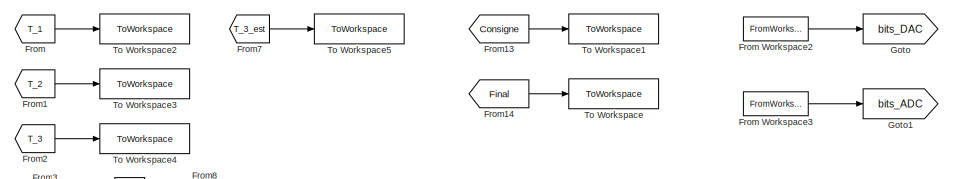
[diagram: root canvas - part 1/3, top left region]
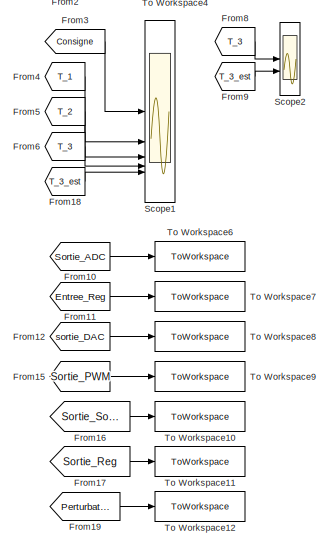
[diagram: root canvas - part 2/3, left side, full height]
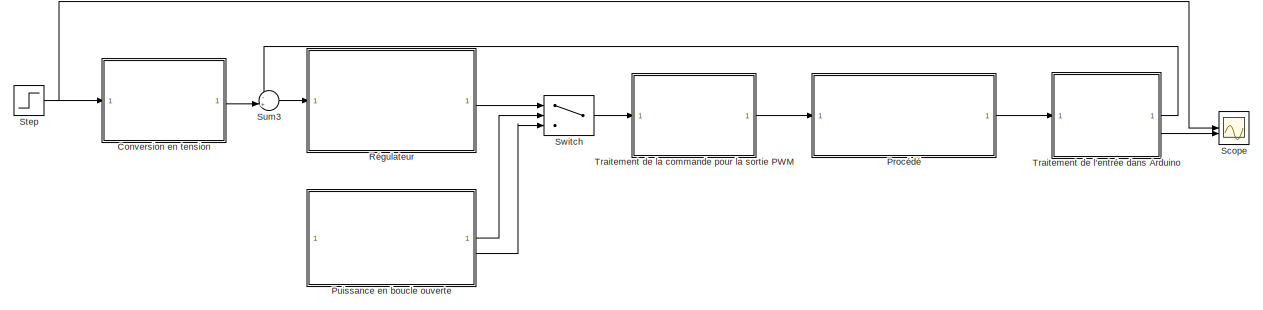
[diagram: root canvas - part 3/3, full width, middle band]
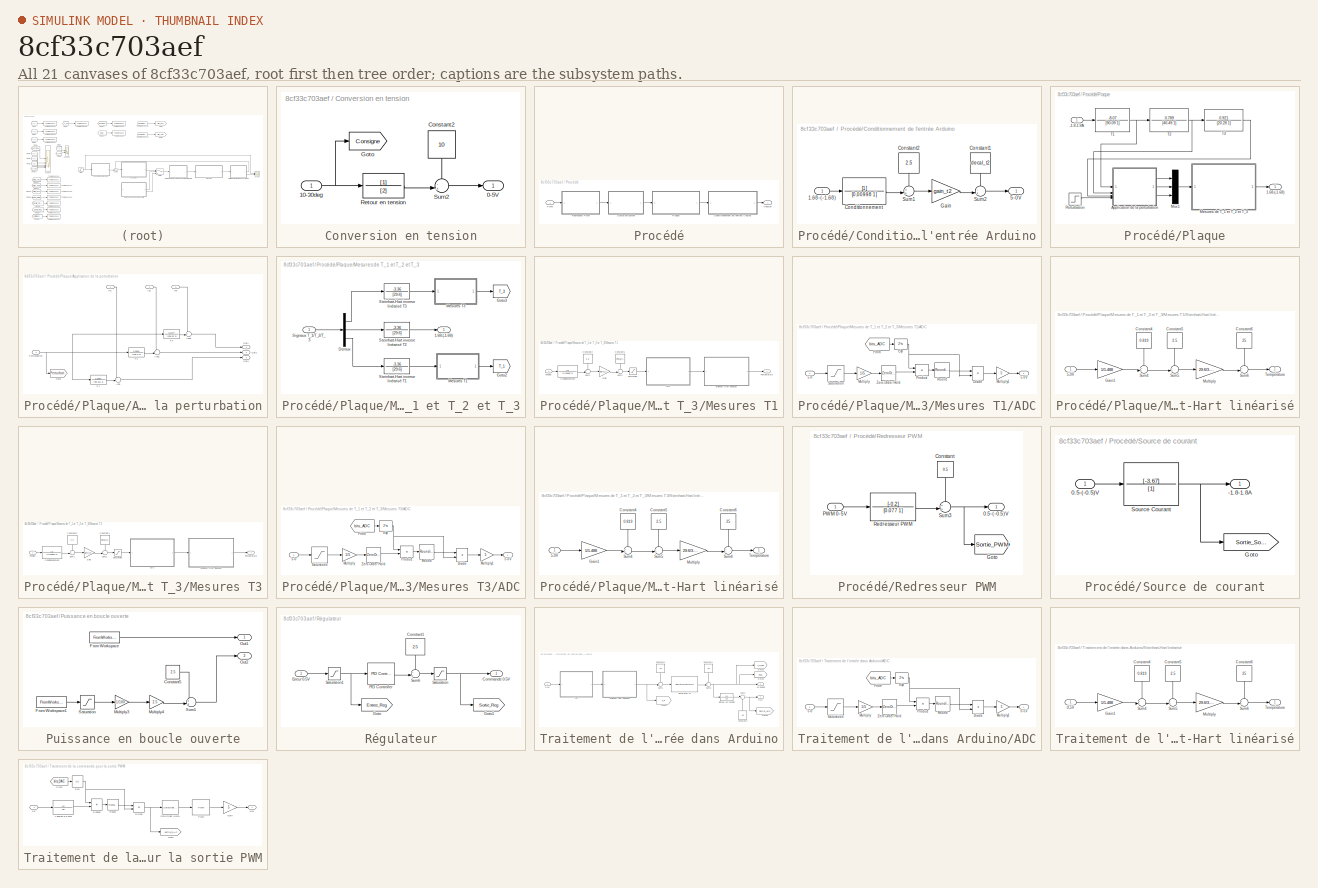
[diagram: thumbnail index - all 21 canvases of the model, root first then tree order]
MODEL slx_8cf33c703aef
KIND model
CONFIG AbsTol = auto
CONFIG EnableMultiTasking = off
CONFIG FixedStep = auto
CONFIG MaxStep = auto
CONFIG MinStep = auto
CONFIG RelTol = 1e-3
CONFIG SampleTimeConstraint = Unconstrained
CONFIG SolverName = VariableStepAuto
CONFIG StartTime = 0.0
CONFIG StopTime = 2000
WORKSPACE source: mxarray member
WORKSPACE Max_DAC = 1
BLOCK [SubSystem] Conversion en tension
BLOCK [Outport] Conversion en tension/0-5V
BLOCK [Inport] Conversion en tension/10-30deg
BLOCK [Constant] Conversion en tension/Constant2
  NameLocation = left
  Value = 10
BLOCK [Goto] Conversion en tension/Goto
  GotoTag = Consigne
  TagVisibility = global
BLOCK [TransferFcn] Conversion en tension/Retour en tension
  Denominator = [2]
BLOCK [Sum] Conversion en tension/Sum2
  InputSameDT = on
  Inputs = -+|
  OutDataTypeStr = Inherit: Same as first input
  SaturateOnIntegerOverflow = on
BLOCK [From] From
  GotoTag = T_1
  TagVisibility = global
BLOCK [FromWorkspace] From Workspace2
  VariableName = bits_DAC
BLOCK [FromWorkspace] From Workspace3
  VariableName = bits_ADC
BLOCK [From] From1
  GotoTag = T_2
  TagVisibility = global
BLOCK [From] From10
  GotoTag = Sortie_ADC
  TagVisibility = global
BLOCK [From] From11
  GotoTag = Entree_Reg
  TagVisibility = global
BLOCK [From] From12
  GotoTag = sortie_DAC
  TagVisibility = global
BLOCK [From] From13
  GotoTag = Consigne
  TagVisibility = global
BLOCK [From] From14
  GotoTag = Final
  TagVisibility = global
BLOCK [From] From15
  GotoTag = Sortie_PWM
  TagVisibility = global
BLOCK [From] From16
  GotoTag = Sortie_Source
  TagVisibility = global
BLOCK [From] From17
  GotoTag = Sortie_Reg
  TagVisibility = global
BLOCK [From] From18
  GotoTag = T_3_est
  TagVisibility = global
BLOCK [From] From19
  GotoTag = Perturbation
  TagVisibility = global
BLOCK [From] From2
  GotoTag = T_3
  TagVisibility = global
BLOCK [From] From3
  GotoTag = Consigne
  TagVisibility = global
BLOCK [From] From4
  GotoTag = T_1
  TagVisibility = global
BLOCK [From] From5
  GotoTag = T_2
  TagVisibility = global
BLOCK [From] From6
  GotoTag = T_3
  TagVisibility = global
BLOCK [From] From7
  GotoTag = T_3_est
  TagVisibility = global
BLOCK [From] From8
  GotoTag = T_3
  TagVisibility = global
BLOCK [From] From9
  GotoTag = T_3_est
  TagVisibility = global
BLOCK [Goto] Goto
  GotoTag = bits_DAC
  TagVisibility = global
BLOCK [Goto] Goto1
  GotoTag = bits_ADC
  TagVisibility = global
BLOCK [SubSystem] Procédé
BLOCK [SubSystem] Procédé/Conditionnement de l'entrée Arduino
BLOCK [Inport] Procédé/Conditionnement de l'entrée Arduino/1.68-(-1.68)
  PortDimensions = 1
BLOCK [Outport] Procédé/Conditionnement de l'entrée Arduino/5-0V
  PortDimensions = 1
BLOCK [TransferFcn] Procédé/Conditionnement de l'entrée Arduino/Conditionnement
  Denominator = [0.00998 1]
BLOCK [Constant] Procédé/Conditionnement de l'entrée Arduino/Constant1
  NameLocation = left
  Value = decal_t2
BLOCK [Constant] Procédé/Conditionnement de l'entrée Arduino/Constant2
  NameLocation = left
  Value = 2.5
BLOCK [Gain] Procédé/Conditionnement de l'entrée Arduino/Gain
  Gain = gain_t2
BLOCK [Sum] Procédé/Conditionnement de l'entrée Arduino/Sum1
  InputSameDT = on
  Inputs = ++|
  OutDataTypeStr = Inherit: Same as first input
  SaturateOnIntegerOverflow = on
BLOCK [Sum] Procédé/Conditionnement de l'entrée Arduino/Sum2
  InputSameDT = on
  Inputs = -+|
  OutDataTypeStr = Inherit: Same as first input
  SaturateOnIntegerOverflow = on
BLOCK [Inport] Procédé/PWM
BLOCK [SubSystem] Procédé/Plaque
  ShowPortLabels = SignalName
BLOCK [Inport] Procédé/Plaque/-1.8-1.8A
  PortDimensions = 1
BLOCK [Outport] Procédé/Plaque/1.68-(-1.68)
  PortDimensions = 1
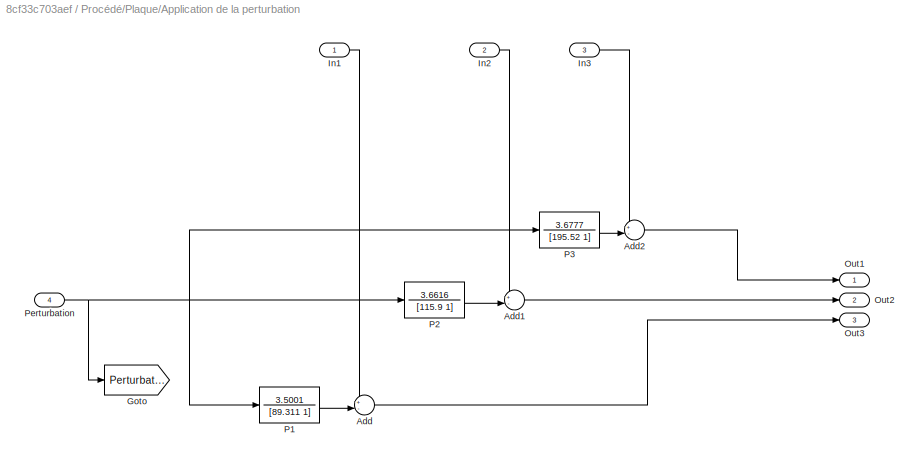
BLOCK [SubSystem] Procédé/Plaque/Application de la perturbation
BLOCK [Sum] Procédé/Plaque/Application de la perturbation/Add
  Inputs = +-|
BLOCK [Sum] Procédé/Plaque/Application de la perturbation/Add1
  Inputs = +-|
BLOCK [Sum] Procédé/Plaque/Application de la perturbation/Add2
  Inputs = +-|
BLOCK [Goto] Procédé/Plaque/Application de la perturbation/Goto
  GotoTag = Perturbation
  TagVisibility = global
BLOCK [Inport] Procédé/Plaque/Application de la perturbation/In1
BLOCK [Inport] Procédé/Plaque/Application de la perturbation/In2
  Port = 2
BLOCK [Inport] Procédé/Plaque/Application de la perturbation/In3
  Port = 3
BLOCK [Outport] Procédé/Plaque/Application de la perturbation/Out1
BLOCK [Outport] Procédé/Plaque/Application de la perturbation/Out2
  Port = 2
BLOCK [Outport] Procédé/Plaque/Application de la perturbation/Out3
  Port = 3
BLOCK [TransferFcn] Procédé/Plaque/Application de la perturbation/P1
  Denominator = [89.311 1]
  Numerator = 3.5001
BLOCK [TransferFcn] Procédé/Plaque/Application de la perturbation/P2
  Denominator = [115.9 1]
  Numerator = 3.6616
BLOCK [TransferFcn] Procédé/Plaque/Application de la perturbation/P3
  Denominator = [195.52 1]
  Numerator = 3.6777
BLOCK [Inport] Procédé/Plaque/Application de la perturbation/Perturbation
  Port = 4
BLOCK [SubSystem] Procédé/Plaque/Mesures de T_1 et T_2 et T_3
BLOCK [Outport] Procédé/Plaque/Mesures de T_1 et T_2 et T_3/1.68-(-1.68)
BLOCK [Demux] Procédé/Plaque/Mesures de T_1 et T_2 et T_3/Demux
  Outputs = 3
BLOCK [Goto] Procédé/Plaque/Mesures de T_1 et T_2 et T_3/Goto2
  GotoTag = T_1
  TagVisibility = global
BLOCK [Goto] Procédé/Plaque/Mesures de T_1 et T_2 et T_3/Goto3
  GotoTag = T_3
  TagVisibility = global
BLOCK [SubSystem] Procédé/Plaque/Mesures de T_1 et T_2 et T_3/Mesures T1
BLOCK [SubSystem] Procédé/Plaque/Mesures de T_1 et T_2 et T_3/Mesures T1/ADC
BLOCK [Inport] Procédé/Plaque/Mesures de T_1 et T_2 et T_3/Mesures T1/ADC/5-0
BLOCK [Outport] Procédé/Plaque/Mesures de T_1 et T_2 et T_3/Mesures T1/ADC/5-0V
BLOCK [Product] Procédé/Plaque/Mesures de T_1 et T_2 et T_3/Mesures T1/ADC/Divide
  Inputs = */
BLOCK [Math] Procédé/Plaque/Mesures de T_1 et T_2 et T_3/Mesures T1/ADC/Exp
  Operator = 2^u
BLOCK [From] Procédé/Plaque/Mesures de T_1 et T_2 et T_3/Mesures T1/ADC/From
  GotoTag = bits_ADC
  TagVisibility = global
BLOCK [Gain] Procédé/Plaque/Mesures de T_1 et T_2 et T_3/Mesures T1/ADC/Multiply
  Gain = 1/5
BLOCK [Gain] Procédé/Plaque/Mesures de T_1 et T_2 et T_3/Mesures T1/ADC/Multiply1
  Gain = 5
BLOCK [Product] Procédé/Plaque/Mesures de T_1 et T_2 et T_3/Mesures T1/ADC/Product
BLOCK [Rounding] Procédé/Plaque/Mesures de T_1 et T_2 et T_3/Mesures T1/ADC/Round
  Operator = round
BLOCK [Saturate] Procédé/Plaque/Mesures de T_1 et T_2 et T_3/Mesures T1/ADC/Saturation
  LowerLimit = 0
  UpperLimit = 5
BLOCK [ZeroOrderHold] Procédé/Plaque/Mesures de T_1 et T_2 et T_3/Mesures T1/ADC/Zero-Order Hold
BLOCK [TransferFcn] Procédé/Plaque/Mesures de T_1 et T_2 et T_3/Mesures T1/Conditionnement
  Denominator = [0.00998 1]
BLOCK [Constant] Procédé/Plaque/Mesures de T_1 et T_2 et T_3/Mesures T1/Constant1
  NameLocation = left
  Value = decal_t1
BLOCK [Constant] Procédé/Plaque/Mesures de T_1 et T_2 et T_3/Mesures T1/Constant2
  NameLocation = left
  Value = 2.5
BLOCK [Gain] Procédé/Plaque/Mesures de T_1 et T_2 et T_3/Mesures T1/Gain
  Gain = gain_t1
BLOCK [Saturate] Procédé/Plaque/Mesures de T_1 et T_2 et T_3/Mesures T1/Saturation
  LowerLimit = 0
  UpperLimit = 5
BLOCK [SubSystem] Procédé/Plaque/Mesures de T_1 et T_2 et T_3/Mesures T1/Steinhart-Hart linéarisé
BLOCK [Inport] Procédé/Plaque/Mesures de T_1 et T_2 et T_3/Mesures T1/Steinhart-Hart linéarisé/5-0V
BLOCK [Constant] Procédé/Plaque/Mesures de T_1 et T_2 et T_3/Mesures T1/Steinhart-Hart linéarisé/Constant4
  NameLocation = left
  Value = 0.819
BLOCK [Constant] Procédé/Plaque/Mesures de T_1 et T_2 et T_3/Mesures T1/Steinhart-Hart linéarisé/Constant5
  NameLocation = left
  Value = 2.5
BLOCK [Constant] Procédé/Plaque/Mesures de T_1 et T_2 et T_3/Mesures T1/Steinhart-Hart linéarisé/Constant6
  NameLocation = left
  Value = 25
BLOCK [Gain] Procédé/Plaque/Mesures de T_1 et T_2 et T_3/Mesures T1/Steinhart-Hart linéarisé/Gain1
  Gain = 1/1.488
BLOCK [Gain] Procédé/Plaque/Mesures de T_1 et T_2 et T_3/Mesures T1/Steinhart-Hart linéarisé/Multiply
  Gain = 29.6/3.36
BLOCK [Sum] Procédé/Plaque/Mesures de T_1 et T_2 et T_3/Mesures T1/Steinhart-Hart linéarisé/Sum4
  InputSameDT = on
  Inputs = ++|
  OutDataTypeStr = Inherit: Same as first input
  SaturateOnIntegerOverflow = on
BLOCK [Sum] Procédé/Plaque/Mesures de T_1 et T_2 et T_3/Mesures T1/Steinhart-Hart linéarisé/Sum5
  InputSameDT = on
  Inputs = -+|
  OutDataTypeStr = Inherit: Same as first input
  SaturateOnIntegerOverflow = on
BLOCK [Sum] Procédé/Plaque/Mesures de T_1 et T_2 et T_3/Mesures T1/Steinhart-Hart linéarisé/Sum6
  InputSameDT = on
  Inputs = ++|
  OutDataTypeStr = Inherit: Same as first input
  SaturateOnIntegerOverflow = on
BLOCK [Outport] Procédé/Plaque/Mesures de T_1 et T_2 et T_3/Mesures T1/Steinhart-Hart linéarisé/Température
BLOCK [Sum] Procédé/Plaque/Mesures de T_1 et T_2 et T_3/Mesures T1/Sum1
  InputSameDT = on
  Inputs = ++|
  OutDataTypeStr = Inherit: Same as first input
  SaturateOnIntegerOverflow = on
BLOCK [Sum] Procédé/Plaque/Mesures de T_1 et T_2 et T_3/Mesures T1/Sum2
  InputSameDT = on
  Inputs = -+|
  OutDataTypeStr = Inherit: Same as first input
  SaturateOnIntegerOverflow = on
BLOCK [Outport] Procédé/Plaque/Mesures de T_1 et T_2 et T_3/Mesures T1/Température
  PortDimensions = 1
BLOCK [Inport] Procédé/Plaque/Mesures de T_1 et T_2 et T_3/Mesures T1/Tension
  PortDimensions = 1
BLOCK [SubSystem] Procédé/Plaque/Mesures de T_1 et T_2 et T_3/Mesures T3
BLOCK [SubSystem] Procédé/Plaque/Mesures de T_1 et T_2 et T_3/Mesures T3/ADC
BLOCK [Inport] Procédé/Plaque/Mesures de T_1 et T_2 et T_3/Mesures T3/ADC/5-0
BLOCK [Outport] Procédé/Plaque/Mesures de T_1 et T_2 et T_3/Mesures T3/ADC/5-0V
BLOCK [Product] Procédé/Plaque/Mesures de T_1 et T_2 et T_3/Mesures T3/ADC/Divide
  Inputs = */
BLOCK [Math] Procédé/Plaque/Mesures de T_1 et T_2 et T_3/Mesures T3/ADC/Exp
  Operator = 2^u
BLOCK [From] Procédé/Plaque/Mesures de T_1 et T_2 et T_3/Mesures T3/ADC/From
  GotoTag = bits_ADC
  TagVisibility = global
BLOCK [Gain] Procédé/Plaque/Mesures de T_1 et T_2 et T_3/Mesures T3/ADC/Multiply
  Gain = 1/5
BLOCK [Gain] Procédé/Plaque/Mesures de T_1 et T_2 et T_3/Mesures T3/ADC/Multiply1
  Gain = 5
BLOCK [Product] Procédé/Plaque/Mesures de T_1 et T_2 et T_3/Mesures T3/ADC/Product
BLOCK [Rounding] Procédé/Plaque/Mesures de T_1 et T_2 et T_3/Mesures T3/ADC/Round
  Operator = round
BLOCK [Saturate] Procédé/Plaque/Mesures de T_1 et T_2 et T_3/Mesures T3/ADC/Saturation
  LowerLimit = 0
  UpperLimit = 5
BLOCK [ZeroOrderHold] Procédé/Plaque/Mesures de T_1 et T_2 et T_3/Mesures T3/ADC/Zero-Order Hold
BLOCK [TransferFcn] Procédé/Plaque/Mesures de T_1 et T_2 et T_3/Mesures T3/Conditionnement
  Denominator = [0.00998 1]
BLOCK [Constant] Procédé/Plaque/Mesures de T_1 et T_2 et T_3/Mesures T3/Constant1
  NameLocation = left
  Value = decal_t3
BLOCK [Constant] Procédé/Plaque/Mesures de T_1 et T_2 et T_3/Mesures T3/Constant2
  NameLocation = left
  Value = 2.5
BLOCK [Gain] Procédé/Plaque/Mesures de T_1 et T_2 et T_3/Mesures T3/Gain
  Gain = gain_t3
BLOCK [Saturate] Procédé/Plaque/Mesures de T_1 et T_2 et T_3/Mesures T3/Saturation
  LowerLimit = 0
  UpperLimit = 5
BLOCK [SubSystem] Procédé/Plaque/Mesures de T_1 et T_2 et T_3/Mesures T3/Steinhart-Hart linéarisé
BLOCK [Inport] Procédé/Plaque/Mesures de T_1 et T_2 et T_3/Mesures T3/Steinhart-Hart linéarisé/5-0V
BLOCK [Constant] Procédé/Plaque/Mesures de T_1 et T_2 et T_3/Mesures T3/Steinhart-Hart linéarisé/Constant4
  NameLocation = left
  Value = 0.819
BLOCK [Constant] Procédé/Plaque/Mesures de T_1 et T_2 et T_3/Mesures T3/Steinhart-Hart linéarisé/Constant5
  NameLocation = left
  Value = 2.5
BLOCK [Constant] Procédé/Plaque/Mesures de T_1 et T_2 et T_3/Mesures T3/Steinhart-Hart linéarisé/Constant6
  NameLocation = left
  Value = 25
BLOCK [Gain] Procédé/Plaque/Mesures de T_1 et T_2 et T_3/Mesures T3/Steinhart-Hart linéarisé/Gain1
  Gain = 1/1.488
BLOCK [Gain] Procédé/Plaque/Mesures de T_1 et T_2 et T_3/Mesures T3/Steinhart-Hart linéarisé/Multiply
  Gain = 29.6/3.36
BLOCK [Sum] Procédé/Plaque/Mesures de T_1 et T_2 et T_3/Mesures T3/Steinhart-Hart linéarisé/Sum4
  InputSameDT = on
  Inputs = ++|
  OutDataTypeStr = Inherit: Same as first input
  SaturateOnIntegerOverflow = on
BLOCK [Sum] Procédé/Plaque/Mesures de T_1 et T_2 et T_3/Mesures T3/Steinhart-Hart linéarisé/Sum5
  InputSameDT = on
  Inputs = -+|
  OutDataTypeStr = Inherit: Same as first input
  SaturateOnIntegerOverflow = on
BLOCK [Sum] Procédé/Plaque/Mesures de T_1 et T_2 et T_3/Mesures T3/Steinhart-Hart linéarisé/Sum6
  InputSameDT = on
  Inputs = ++|
  OutDataTypeStr = Inherit: Same as first input
  SaturateOnIntegerOverflow = on
BLOCK [Outport] Procédé/Plaque/Mesures de T_1 et T_2 et T_3/Mesures T3/Steinhart-Hart linéarisé/Température
BLOCK [Sum] Procédé/Plaque/Mesures de T_1 et T_2 et T_3/Mesures T3/Sum1
  InputSameDT = on
  Inputs = ++|
  OutDataTypeStr = Inherit: Same as first input
  SaturateOnIntegerOverflow = on
BLOCK [Sum] Procédé/Plaque/Mesures de T_1 et T_2 et T_3/Mesures T3/Sum2
  InputSameDT = on
  Inputs = -+|
  OutDataTypeStr = Inherit: Same as first input
  SaturateOnIntegerOverflow = on
BLOCK [Outport] Procédé/Plaque/Mesures de T_1 et T_2 et T_3/Mesures T3/Température
  PortDimensions = 1
BLOCK [Inport] Procédé/Plaque/Mesures de T_1 et T_2 et T_3/Mesures T3/Tension
  PortDimensions = 1
BLOCK [Inport] Procédé/Plaque/Mesures de T_1 et T_2 et T_3/Signaux T_1//T_2//T_3
  PortDimensions = 3
BLOCK [TransferFcn] Procédé/Plaque/Mesures de T_1 et T_2 et T_3/Steinhart-Hart inverse linéarisé T1
  Denominator = [29.6]
  Numerator = -3.36
BLOCK [TransferFcn] Procédé/Plaque/Mesures de T_1 et T_2 et T_3/Steinhart-Hart inverse linéarisé T2
  Denominator = [29.6]
  Numerator = -3.36
BLOCK [TransferFcn] Procédé/Plaque/Mesures de T_1 et T_2 et T_3/Steinhart-Hart inverse linéarisé T3
  Denominator = [29.6]
  Numerator = -3.36
BLOCK [Mux] Procédé/Plaque/Mux1
  DisplayOption = bar
  Inputs = 3
BLOCK [Step] Procédé/Plaque/Perturbation
  After = 0
  SampleTime = 0
  Time = 600
BLOCK [TransferFcn] Procédé/Plaque/T1
  Denominator = [90.09 1]
  Numerator = -8.07
BLOCK [TransferFcn] Procédé/Plaque/T2
  Denominator = [40.49 1]
  Numerator = 0.789
BLOCK [TransferFcn] Procédé/Plaque/T3
  Denominator = [20.28 1]
  Numerator = 0.921
BLOCK [SubSystem] Procédé/Redresseur PWM
BLOCK [Outport] Procédé/Redresseur PWM/0.5-(-0.5)V
BLOCK [Constant] Procédé/Redresseur PWM/Constant
  NameLocation = left
  Value = 0.5
BLOCK [Goto] Procédé/Redresseur PWM/Goto
  GotoTag = Sortie_PWM
  TagVisibility = global
BLOCK [Inport] Procédé/Redresseur PWM/PWM 0-5V
BLOCK [TransferFcn] Procédé/Redresseur PWM/Redresseur PWM
  Denominator = [0.077 1]
  Numerator = [-0.2]
BLOCK [Sum] Procédé/Redresseur PWM/Sum3
  InputSameDT = on
  Inputs = ++|
  OutDataTypeStr = Inherit: Same as first input
  SaturateOnIntegerOverflow = on
BLOCK [SubSystem] Procédé/Source de courant
BLOCK [Outport] Procédé/Source de courant/-1.8-1.8A
BLOCK [Inport] Procédé/Source de courant/0.5-(-0.5)V
BLOCK [Goto] Procédé/Source de courant/Goto
  GotoTag = Sortie_Source
  TagVisibility = global
BLOCK [TransferFcn] Procédé/Source de courant/Source Courant
  Denominator = [1]
  Numerator = [-3.67]
BLOCK [Outport] Procédé/Tension
  PortDimensions = 1
BLOCK [SubSystem] Puissance en boucle ouverte
BLOCK [Constant] Puissance en boucle ouverte/Constant5
  Value = 2.5
BLOCK [FromWorkspace] Puissance en boucle ouverte/From Workspace
  SampleTime = 1
  VariableName = switchBoucle
BLOCK [FromWorkspace] Puissance en boucle ouverte/From Workspace1
  SampleTime = 1
  VariableName = percentPower
BLOCK [Gain] Puissance en boucle ouverte/Multiply3
  Gain = 1/100
BLOCK [Gain] Puissance en boucle ouverte/Multiply4
  Gain = 2.5
BLOCK [Outport] Puissance en boucle ouverte/Out1
BLOCK [Outport] Puissance en boucle ouverte/Out2
  Port = 2
BLOCK [Saturate] Puissance en boucle ouverte/Saturation
  LowerLimit = -100
  UpperLimit = 100
BLOCK [Sum] Puissance en boucle ouverte/Sum1
  InputSameDT = on
  Inputs = ++|
  OutDataTypeStr = Inherit: Same as first input
  SaturateOnIntegerOverflow = on
BLOCK [SubSystem] Régulateur
BLOCK [Outport] Régulateur/Commande 0-5V
BLOCK [Constant] Régulateur/Constant1
  NameLocation = left
  Value = 2.5
BLOCK [Inport] Régulateur/Erreur 0-5V
BLOCK [Goto] Régulateur/Goto
  GotoTag = Entree_Reg
  TagVisibility = global
BLOCK [Goto] Régulateur/Goto1
  GotoTag = Sortie_Reg
  TagVisibility = global
BLOCK [Reference] Régulateur/PID Controller  REF=slpidlib/PID Controller
  LibrarySourceBlock = simulink/Continuous/PID Controller
  SourceBlock = slpidlib/PID Controller
  SourceType = PID 1dof
BLOCK [Saturate] Régulateur/Saturation
  LowerLimit = 0
  UpperLimit = 5
BLOCK [Saturate] Régulateur/Saturation1
  LowerLimit = -5
  UpperLimit = 5
BLOCK [Sum] Régulateur/Sum6
  InputSameDT = on
  Inputs = ++|
  OutDataTypeStr = Inherit: Same as first input
  SaturateOnIntegerOverflow = on
BLOCK [Scope] Scope
  Floating = off
  NumInputPorts = 2
  ScopeSpecificationString = Simulink.scopes.TimeScopeBlockCfg('CurrentConfiguration', extmgr.ConfigurationSet(extmgr.Configuration('Core','General UI',true),extmgr.Configuration('Core','Source UI',true),extmgr.Configuration('Sources','WiredSimulink',true,'DataLogging',true),extmgr.Configuration('Visuals','Time Domain',true,'SerializedDisplays',{struct('MinYLimReal','24.66522','MaxYLimReal','27.94054','YLabelReal','','MinYLim...<+1794ch>
BLOCK [Scope] Scope1
  Floating = off
  NumInputPorts = 5
  ScopeSpecificationString = Simulink.scopes.TimeScopeBlockCfg('CurrentConfiguration', extmgr.ConfigurationSet(extmgr.Configuration('Core','General UI',true),extmgr.Configuration('Core','Source UI',true),extmgr.Configuration('Sources','WiredSimulink',true,'DataLoggingVariableName','ScopeData1'),extmgr.Configuration('Visuals','Time Domain',true,'SerializedDisplays',{struct('MinYLimReal','24.0472','MaxYLimReal','33.352','YLabel...<+1492ch>
BLOCK [Scope] Scope2
  Floating = off
  NumInputPorts = 2
  ScopeSpecificationString = Simulink.scopes.TimeScopeBlockCfg('CurrentConfiguration', extmgr.ConfigurationSet(extmgr.Configuration('Core','General UI',true),extmgr.Configuration('Core','Source UI',true),extmgr.Configuration('Sources','WiredSimulink',true,'DataLogging',true,'DataLoggingVariableName','ScopeData2'),extmgr.Configuration('Visuals','Time Domain',true,'SerializedDisplays',{struct('MinYLimReal','23.30159','MaxYLimRe...<+1808ch>
BLOCK [Step] Step
  After = 30
  Before = 25
  SampleTime = 0
  Time = 500
BLOCK [Sum] Sum3
  InputSameDT = on
  Inputs = -+|
  OutDataTypeStr = Inherit: Same as first input
  SaturateOnIntegerOverflow = on
BLOCK [Switch] Switch
  Criteria = u2 > Threshold
  InputSameDT = off
  SaturateOnIntegerOverflow = off
BLOCK [ToWorkspace] To Workspace
  MaxDataPoints = inf
  SampleTime = 1
  VariableName = final
BLOCK [ToWorkspace] To Workspace1
  FixptAsFi = on
  MaxDataPoints = inf
  SampleTime = 1
  VariableName = consigne
BLOCK [ToWorkspace] To Workspace10
  FixptAsFi = on
  MaxDataPoints = inf
  SampleTime = 1
  VariableName = Sortie_Source
BLOCK [ToWorkspace] To Workspace11
  FixptAsFi = on
  MaxDataPoints = inf
  SampleTime = 1
  VariableName = Sortie_Reg
BLOCK [ToWorkspace] To Workspace12
  FixptAsFi = on
  MaxDataPoints = inf
  SampleTime = 1
  VariableName = Perturbation
BLOCK [ToWorkspace] To Workspace2
  FixptAsFi = on
  MaxDataPoints = inf
  SampleTime = 1
  VariableName = T_1
BLOCK [ToWorkspace] To Workspace3
  FixptAsFi = on
  MaxDataPoints = inf
  SampleTime = 1
  VariableName = T_2
BLOCK [ToWorkspace] To Workspace4
  FixptAsFi = on
  MaxDataPoints = inf
  SampleTime = 1
  VariableName = T_3
BLOCK [ToWorkspace] To Workspace5
  FixptAsFi = on
  MaxDataPoints = inf
  SampleTime = 1
  VariableName = T_3_est
BLOCK [ToWorkspace] To Workspace6
  FixptAsFi = on
  MaxDataPoints = inf
  SampleTime = 1
  VariableName = Sortie_ADC
BLOCK [ToWorkspace] To Workspace7
  FixptAsFi = on
  MaxDataPoints = inf
  SampleTime = 1
  VariableName = Entree_Reg
BLOCK [ToWorkspace] To Workspace8
  FixptAsFi = on
  MaxDataPoints = inf
  SampleTime = 1
  VariableName = Sortie_DAC
BLOCK [ToWorkspace] To Workspace9
  FixptAsFi = on
  MaxDataPoints = inf
  SampleTime = 1
  VariableName = Sortie_PWM
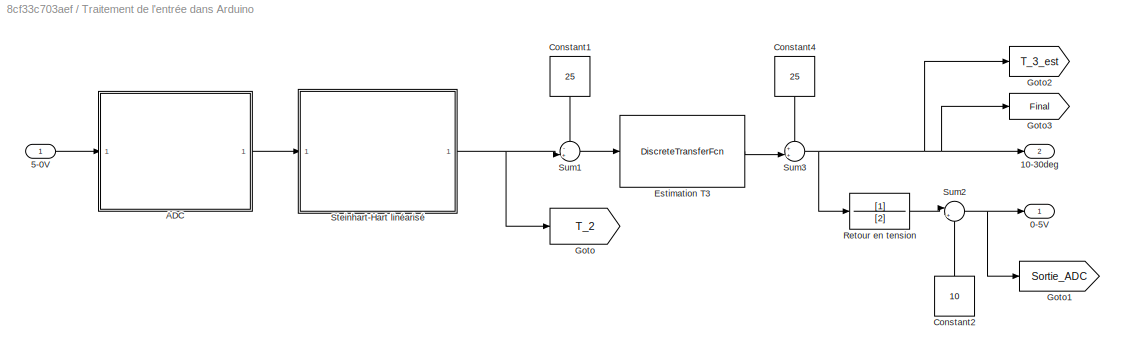
BLOCK [SubSystem] Traitement de l'entrée dans Arduino
BLOCK [Outport] Traitement de l'entrée dans Arduino/0-5V
BLOCK [Outport] Traitement de l'entrée dans Arduino/10-30deg
  Port = 2
  PortDimensions = 1
BLOCK [Inport] Traitement de l'entrée dans Arduino/5-0V
  PortDimensions = 1
BLOCK [SubSystem] Traitement de l'entrée dans Arduino/ADC
BLOCK [Outport] Traitement de l'entrée dans Arduino/ADC/0-5V
BLOCK [Inport] Traitement de l'entrée dans Arduino/ADC/5-0
BLOCK [Product] Traitement de l'entrée dans Arduino/ADC/Divide
  Inputs = */
BLOCK [Math] Traitement de l'entrée dans Arduino/ADC/Exp
  Operator = 2^u
BLOCK [From] Traitement de l'entrée dans Arduino/ADC/From
  GotoTag = bits_ADC
  TagVisibility = global
BLOCK [Gain] Traitement de l'entrée dans Arduino/ADC/Multiply
  Gain = 1/5
BLOCK [Gain] Traitement de l'entrée dans Arduino/ADC/Multiply1
  Gain = 5
BLOCK [Product] Traitement de l'entrée dans Arduino/ADC/Product
BLOCK [Rounding] Traitement de l'entrée dans Arduino/ADC/Round
  Operator = round
BLOCK [Saturate] Traitement de l'entrée dans Arduino/ADC/Saturation
  LowerLimit = 0
  UpperLimit = 5
BLOCK [ZeroOrderHold] Traitement de l'entrée dans Arduino/ADC/Zero-Order Hold
BLOCK [Constant] Traitement de l'entrée dans Arduino/Constant1
  NameLocation = left
  Value = 25
BLOCK [Constant] Traitement de l'entrée dans Arduino/Constant2
  NameLocation = right
  Value = 10
BLOCK [Constant] Traitement de l'entrée dans Arduino/Constant4
  NameLocation = left
  Value = 25
BLOCK [DiscreteTransferFcn] Traitement de l'entrée dans Arduino/Estimation T3
  Denominator = [1 -0.9519]
  InputPortMap = u0
  Numerator = [0.02216 0.02216]
  SampleTime = 1
BLOCK [Goto] Traitement de l'entrée dans Arduino/Goto
  GotoTag = T_2
  TagVisibility = global
BLOCK [Goto] Traitement de l'entrée dans Arduino/Goto1
  GotoTag = Sortie_ADC
  TagVisibility = global
BLOCK [Goto] Traitement de l'entrée dans Arduino/Goto2
  GotoTag = T_3_est
  TagVisibility = global
BLOCK [Goto] Traitement de l'entrée dans Arduino/Goto3
  GotoTag = Final
  TagVisibility = global
BLOCK [TransferFcn] Traitement de l'entrée dans Arduino/Retour en tension
  Denominator = [2]
BLOCK [SubSystem] Traitement de l'entrée dans Arduino/Steinhart-Hart linéarisé
BLOCK [Inport] Traitement de l'entrée dans Arduino/Steinhart-Hart linéarisé/0-5V
BLOCK [Constant] Traitement de l'entrée dans Arduino/Steinhart-Hart linéarisé/Constant4
  NameLocation = left
  Value = 0.819
BLOCK [Constant] Traitement de l'entrée dans Arduino/Steinhart-Hart linéarisé/Constant5
  NameLocation = left
  Value = 2.5
BLOCK [Constant] Traitement de l'entrée dans Arduino/Steinhart-Hart linéarisé/Constant6
  NameLocation = left
  Value = 25
BLOCK [Gain] Traitement de l'entrée dans Arduino/Steinhart-Hart linéarisé/Gain1
  Gain = 1/1.488
BLOCK [Gain] Traitement de l'entrée dans Arduino/Steinhart-Hart linéarisé/Multiply
  Gain = 29.6/3.36
BLOCK [Sum] Traitement de l'entrée dans Arduino/Steinhart-Hart linéarisé/Sum4
  InputSameDT = on
  Inputs = ++|
  OutDataTypeStr = Inherit: Same as first input
  SaturateOnIntegerOverflow = on
BLOCK [Sum] Traitement de l'entrée dans Arduino/Steinhart-Hart linéarisé/Sum5
  InputSameDT = on
  Inputs = -+|
  OutDataTypeStr = Inherit: Same as first input
  SaturateOnIntegerOverflow = on
BLOCK [Sum] Traitement de l'entrée dans Arduino/Steinhart-Hart linéarisé/Sum6
  InputSameDT = on
  Inputs = ++|
  OutDataTypeStr = Inherit: Same as first input
  SaturateOnIntegerOverflow = on
BLOCK [Outport] Traitement de l'entrée dans Arduino/Steinhart-Hart linéarisé/Température
BLOCK [Sum] Traitement de l'entrée dans Arduino/Sum1
  InputSameDT = on
  Inputs = -+|
  OutDataTypeStr = Inherit: Same as first input
  SaturateOnIntegerOverflow = on
BLOCK [Sum] Traitement de l'entrée dans Arduino/Sum2
  InputSameDT = on
  Inputs = |+-
  OutDataTypeStr = Inherit: Same as first input
  SaturateOnIntegerOverflow = on
BLOCK [Sum] Traitement de l'entrée dans Arduino/Sum3
  InputSameDT = on
  Inputs = ++|
  OutDataTypeStr = Inherit: Same as first input
  SaturateOnIntegerOverflow = on
BLOCK [SubSystem] Traitement de la commande pour la sortie PWM
BLOCK [Inport] Traitement de la commande pour la sortie PWM/0-5
BLOCK [Outport] Traitement de la commande pour la sortie PWM/0-5V
BLOCK [Product] Traitement de la commande pour la sortie PWM/Divide
  Inputs = */
BLOCK [Math] Traitement de la commande pour la sortie PWM/Exp
  Operator = 2^u
BLOCK [From] Traitement de la commande pour la sortie PWM/From
  GotoTag = bits_DAC
  TagVisibility = global
BLOCK [Gain] Traitement de la commande pour la sortie PWM/Gain
  Gain = 5
BLOCK [Goto] Traitement de la commande pour la sortie PWM/Goto
  GotoTag = sortie_DAC
  TagVisibility = global
BLOCK [Reference] Traitement de la commande pour la sortie PWM/PWM  REF=simulink/Discontinuities/PWM
  DisableCoverage = on
  SourceBlock = simulink/Discontinuities/PWM
  SourceType = PWM
BLOCK [Product] Traitement de la commande pour la sortie PWM/Product
BLOCK [Rounding] Traitement de la commande pour la sortie PWM/Round
  Operator = round
BLOCK [TransferFcn] Traitement de la commande pour la sortie PWM/Tension à PWM
  Denominator = [5]
BLOCK [ZeroOrderHold] Traitement de la commande pour la sortie PWM/Zero-Order Hold1
NET Conversion en tension/10-30deg:1 -> Conversion en tension/Goto:1, Conversion en tension/Retour en tension:1
LINE Conversion en tension/Constant2:1 -> Conversion en tension/Sum2:1
LINE Conversion en tension/Retour en tension:1 -> Conversion en tension/Sum2:2
LINE Conversion en tension/Sum2:1 -> Conversion en tension/0-5V:1
LINE Conversion en tension:1 -> Sum3:2
LINE From Workspace2:1 -> Goto:1
LINE From Workspace3:1 -> Goto1:1
LINE From10:1 -> To Workspace6:1
LINE From11:1 -> To Workspace7:1
LINE From12:1 -> To Workspace8:1
LINE From13:1 -> To Workspace1:1
LINE From14:1 -> To Workspace:1
LINE From15:1 -> To Workspace9:1
LINE From16:1 -> To Workspace10:1
LINE From17:1 -> To Workspace11:1
LINE From18:1 -> Scope1:5
LINE From19:1 -> To Workspace12:1
LINE From1:1 -> To Workspace3:1
LINE From2:1 -> To Workspace4:1
LINE From3:1 -> Scope1:1
LINE From4:1 -> Scope1:2
LINE From5:1 -> Scope1:3
LINE From6:1 -> Scope1:4
LINE From7:1 -> To Workspace5:1
LINE From8:1 -> Scope2:1
LINE From9:1 -> Scope2:2
LINE From:1 -> To Workspace2:1
LINE Procédé/Conditionnement de l'entrée Arduino/1.68-(-1.68):1 -> Procédé/Conditionnement de l'entrée Arduino/Conditionnement:1
LINE Procédé/Conditionnement de l'entrée Arduino/Conditionnement:1 -> Procédé/Conditionnement de l'entrée Arduino/Sum1:2
LINE Procédé/Conditionnement de l'entrée Arduino/Constant1:1 -> Procédé/Conditionnement de l'entrée Arduino/Sum2:1
LINE Procédé/Conditionnement de l'entrée Arduino/Constant2:1 -> Procédé/Conditionnement de l'entrée Arduino/Sum1:1
LINE Procédé/Conditionnement de l'entrée Arduino/Gain:1 -> Procédé/Conditionnement de l'entrée Arduino/Sum2:2
LINE Procédé/Conditionnement de l'entrée Arduino/Sum1:1 -> Procédé/Conditionnement de l'entrée Arduino/Gain:1
LINE Procédé/Conditionnement de l'entrée Arduino/Sum2:1 -> Procédé/Conditionnement de l'entrée Arduino/5-0V:1
LINE Procédé/Conditionnement de l'entrée Arduino:1 -> Procédé/Tension:1
LINE Procédé/PWM:1 -> Procédé/Redresseur PWM:1
LINE Procédé/Plaque/-1.8-1.8A:1 -> Procédé/Plaque/T1:1
LINE Procédé/Plaque/Application de la perturbation/Add1:1 -> Procédé/Plaque/Application de la perturbation/Out2:1
LINE Procédé/Plaque/Application de la perturbation/Add2:1 -> Procédé/Plaque/Application de la perturbation/Out1:1
LINE Procédé/Plaque/Application de la perturbation/Add:1 -> Procédé/Plaque/Application de la perturbation/Out3:1
LINE Procédé/Plaque/Application de la perturbation/In1:1 -> Procédé/Plaque/Application de la perturbation/Add:1
LINE Procédé/Plaque/Application de la perturbation/In2:1 -> Procédé/Plaque/Application de la perturbation/Add1:1
LINE Procédé/Plaque/Application de la perturbation/In3:1 -> Procédé/Plaque/Application de la perturbation/Add2:1
LINE Procédé/Plaque/Application de la perturbation/P1:1 -> Procédé/Plaque/Application de la perturbation/Add:2
LINE Procédé/Plaque/Application de la perturbation/P2:1 -> Procédé/Plaque/Application de la perturbation/Add1:2
LINE Procédé/Plaque/Application de la perturbation/P3:1 -> Procédé/Plaque/Application de la perturbation/Add2:2
NET Procédé/Plaque/Application de la perturbation/Perturbation:1 -> Procédé/Plaque/Application de la perturbation/Goto:1, Procédé/Plaque/Application de la perturbation/P1:1, Procédé/Plaque/Application de la perturbation/P2:1, Procédé/Plaque/Application de la perturbation/P3:1
LINE Procédé/Plaque/Application de la perturbation:1 -> Procédé/Plaque/Mux1:1
LINE Procédé/Plaque/Application de la perturbation:2 -> Procédé/Plaque/Mux1:2
LINE Procédé/Plaque/Application de la perturbation:3 -> Procédé/Plaque/Mux1:3
LINE Procédé/Plaque/Mesures de T_1 et T_2 et T_3/Demux:1 -> Procédé/Plaque/Mesures de T_1 et T_2 et T_3/Steinhart-Hart inverse linéarisé T3:1
LINE Procédé/Plaque/Mesures de T_1 et T_2 et T_3/Demux:2 -> Procédé/Plaque/Mesures de T_1 et T_2 et T_3/Steinhart-Hart inverse linéarisé T2:1
LINE Procédé/Plaque/Mesures de T_1 et T_2 et T_3/Demux:3 -> Procédé/Plaque/Mesures de T_1 et T_2 et T_3/Steinhart-Hart inverse linéarisé T1:1
LINE Procédé/Plaque/Mesures de T_1 et T_2 et T_3/Mesures T1/ADC/5-0:1 -> Procédé/Plaque/Mesures de T_1 et T_2 et T_3/Mesures T1/ADC/Saturation:1
LINE Procédé/Plaque/Mesures de T_1 et T_2 et T_3/Mesures T1/ADC/Divide:1 -> Procédé/Plaque/Mesures de T_1 et T_2 et T_3/Mesures T1/ADC/Multiply1:1
NET Procédé/Plaque/Mesures de T_1 et T_2 et T_3/Mesures T1/ADC/Exp:1 -> Procédé/Plaque/Mesures de T_1 et T_2 et T_3/Mesures T1/ADC/Divide:2, Procédé/Plaque/Mesures de T_1 et T_2 et T_3/Mesures T1/ADC/Product:1
LINE Procédé/Plaque/Mesures de T_1 et T_2 et T_3/Mesures T1/ADC/From:1 -> Procédé/Plaque/Mesures de T_1 et T_2 et T_3/Mesures T1/ADC/Exp:1
LINE Procédé/Plaque/Mesures de T_1 et T_2 et T_3/Mesures T1/ADC/Multiply1:1 -> Procédé/Plaque/Mesures de T_1 et T_2 et T_3/Mesures T1/ADC/5-0V:1
LINE Procédé/Plaque/Mesures de T_1 et T_2 et T_3/Mesures T1/ADC/Multiply:1 -> Procédé/Plaque/Mesures de T_1 et T_2 et T_3/Mesures T1/ADC/Zero-Order Hold:1
LINE Procédé/Plaque/Mesures de T_1 et T_2 et T_3/Mesures T1/ADC/Product:1 -> Procédé/Plaque/Mesures de T_1 et T_2 et T_3/Mesures T1/ADC/Round:1
LINE Procédé/Plaque/Mesures de T_1 et T_2 et T_3/Mesures T1/ADC/Round:1 -> Procédé/Plaque/Mesures de T_1 et T_2 et T_3/Mesures T1/ADC/Divide:1
LINE Procédé/Plaque/Mesures de T_1 et T_2 et T_3/Mesures T1/ADC/Saturation:1 -> Procédé/Plaque/Mesures de T_1 et T_2 et T_3/Mesures T1/ADC/Multiply:1
LINE Procédé/Plaque/Mesures de T_1 et T_2 et T_3/Mesures T1/ADC/Zero-Order Hold:1 -> Procédé/Plaque/Mesures de T_1 et T_2 et T_3/Mesures T1/ADC/Product:2
LINE Procédé/Plaque/Mesures de T_1 et T_2 et T_3/Mesures T1/ADC:1 -> Procédé/Plaque/Mesures de T_1 et T_2 et T_3/Mesures T1/Steinhart-Hart linéarisé:1
LINE Procédé/Plaque/Mesures de T_1 et T_2 et T_3/Mesures T1/Conditionnement:1 -> Procédé/Plaque/Mesures de T_1 et T_2 et T_3/Mesures T1/Sum1:2
LINE Procédé/Plaque/Mesures de T_1 et T_2 et T_3/Mesures T1/Constant1:1 -> Procédé/Plaque/Mesures de T_1 et T_2 et T_3/Mesures T1/Sum2:1
LINE Procédé/Plaque/Mesures de T_1 et T_2 et T_3/Mesures T1/Constant2:1 -> Procédé/Plaque/Mesures de T_1 et T_2 et T_3/Mesures T1/Sum1:1
LINE Procédé/Plaque/Mesures de T_1 et T_2 et T_3/Mesures T1/Gain:1 -> Procédé/Plaque/Mesures de T_1 et T_2 et T_3/Mesures T1/Sum2:2
LINE Procédé/Plaque/Mesures de T_1 et T_2 et T_3/Mesures T1/Saturation:1 -> Procédé/Plaque/Mesures de T_1 et T_2 et T_3/Mesures T1/ADC:1
LINE Procédé/Plaque/Mesures de T_1 et T_2 et T_3/Mesures T1/Steinhart-Hart linéarisé/5-0V:1 -> Procédé/Plaque/Mesures de T_1 et T_2 et T_3/Mesures T1/Steinhart-Hart linéarisé/Gain1:1
LINE Procédé/Plaque/Mesures de T_1 et T_2 et T_3/Mesures T1/Steinhart-Hart linéarisé/Constant4:1 -> Procédé/Plaque/Mesures de T_1 et T_2 et T_3/Mesures T1/Steinhart-Hart linéarisé/Sum4:1
LINE Procédé/Plaque/Mesures de T_1 et T_2 et T_3/Mesures T1/Steinhart-Hart linéarisé/Constant5:1 -> Procédé/Plaque/Mesures de T_1 et T_2 et T_3/Mesures T1/Steinhart-Hart linéarisé/Sum5:1
LINE Procédé/Plaque/Mesures de T_1 et T_2 et T_3/Mesures T1/Steinhart-Hart linéarisé/Constant6:1 -> Procédé/Plaque/Mesures de T_1 et T_2 et T_3/Mesures T1/Steinhart-Hart linéarisé/Sum6:1
LINE Procédé/Plaque/Mesures de T_1 et T_2 et T_3/Mesures T1/Steinhart-Hart linéarisé/Gain1:1 -> Procédé/Plaque/Mesures de T_1 et T_2 et T_3/Mesures T1/Steinhart-Hart linéarisé/Sum4:2
LINE Procédé/Plaque/Mesures de T_1 et T_2 et T_3/Mesures T1/Steinhart-Hart linéarisé/Multiply:1 -> Procédé/Plaque/Mesures de T_1 et T_2 et T_3/Mesures T1/Steinhart-Hart linéarisé/Sum6:2
LINE Procédé/Plaque/Mesures de T_1 et T_2 et T_3/Mesures T1/Steinhart-Hart linéarisé/Sum4:1 -> Procédé/Plaque/Mesures de T_1 et T_2 et T_3/Mesures T1/Steinhart-Hart linéarisé/Sum5:2
LINE Procédé/Plaque/Mesures de T_1 et T_2 et T_3/Mesures T1/Steinhart-Hart linéarisé/Sum5:1 -> Procédé/Plaque/Mesures de T_1 et T_2 et T_3/Mesures T1/Steinhart-Hart linéarisé/Multiply:1
LINE Procédé/Plaque/Mesures de T_1 et T_2 et T_3/Mesures T1/Steinhart-Hart linéarisé/Sum6:1 -> Procédé/Plaque/Mesures de T_1 et T_2 et T_3/Mesures T1/Steinhart-Hart linéarisé/Température:1
LINE Procédé/Plaque/Mesures de T_1 et T_2 et T_3/Mesures T1/Steinhart-Hart linéarisé:1 -> Procédé/Plaque/Mesures de T_1 et T_2 et T_3/Mesures T1/Température:1
LINE Procédé/Plaque/Mesures de T_1 et T_2 et T_3/Mesures T1/Sum1:1 -> Procédé/Plaque/Mesures de T_1 et T_2 et T_3/Mesures T1/Gain:1
LINE Procédé/Plaque/Mesures de T_1 et T_2 et T_3/Mesures T1/Sum2:1 -> Procédé/Plaque/Mesures de T_1 et T_2 et T_3/Mesures T1/Saturation:1
LINE Procédé/Plaque/Mesures de T_1 et T_2 et T_3/Mesures T1/Tension:1 -> Procédé/Plaque/Mesures de T_1 et T_2 et T_3/Mesures T1/Conditionnement:1
LINE Procédé/Plaque/Mesures de T_1 et T_2 et T_3/Mesures T1:1 -> Procédé/Plaque/Mesures de T_1 et T_2 et T_3/Goto2:1
LINE Procédé/Plaque/Mesures de T_1 et T_2 et T_3/Mesures T3/ADC/5-0:1 -> Procédé/Plaque/Mesures de T_1 et T_2 et T_3/Mesures T3/ADC/Saturation:1
LINE Procédé/Plaque/Mesures de T_1 et T_2 et T_3/Mesures T3/ADC/Divide:1 -> Procédé/Plaque/Mesures de T_1 et T_2 et T_3/Mesures T3/ADC/Multiply1:1
NET Procédé/Plaque/Mesures de T_1 et T_2 et T_3/Mesures T3/ADC/Exp:1 -> Procédé/Plaque/Mesures de T_1 et T_2 et T_3/Mesures T3/ADC/Divide:2, Procédé/Plaque/Mesures de T_1 et T_2 et T_3/Mesures T3/ADC/Product:1
LINE Procédé/Plaque/Mesures de T_1 et T_2 et T_3/Mesures T3/ADC/From:1 -> Procédé/Plaque/Mesures de T_1 et T_2 et T_3/Mesures T3/ADC/Exp:1
LINE Procédé/Plaque/Mesures de T_1 et T_2 et T_3/Mesures T3/ADC/Multiply1:1 -> Procédé/Plaque/Mesures de T_1 et T_2 et T_3/Mesures T3/ADC/5-0V:1
LINE Procédé/Plaque/Mesures de T_1 et T_2 et T_3/Mesures T3/ADC/Multiply:1 -> Procédé/Plaque/Mesures de T_1 et T_2 et T_3/Mesures T3/ADC/Zero-Order Hold:1
LINE Procédé/Plaque/Mesures de T_1 et T_2 et T_3/Mesures T3/ADC/Product:1 -> Procédé/Plaque/Mesures de T_1 et T_2 et T_3/Mesures T3/ADC/Round:1
LINE Procédé/Plaque/Mesures de T_1 et T_2 et T_3/Mesures T3/ADC/Round:1 -> Procédé/Plaque/Mesures de T_1 et T_2 et T_3/Mesures T3/ADC/Divide:1
LINE Procédé/Plaque/Mesures de T_1 et T_2 et T_3/Mesures T3/ADC/Saturation:1 -> Procédé/Plaque/Mesures de T_1 et T_2 et T_3/Mesures T3/ADC/Multiply:1
LINE Procédé/Plaque/Mesures de T_1 et T_2 et T_3/Mesures T3/ADC/Zero-Order Hold:1 -> Procédé/Plaque/Mesures de T_1 et T_2 et T_3/Mesures T3/ADC/Product:2
LINE Procédé/Plaque/Mesures de T_1 et T_2 et T_3/Mesures T3/ADC:1 -> Procédé/Plaque/Mesures de T_1 et T_2 et T_3/Mesures T3/Steinhart-Hart linéarisé:1
LINE Procédé/Plaque/Mesures de T_1 et T_2 et T_3/Mesures T3/Conditionnement:1 -> Procédé/Plaque/Mesures de T_1 et T_2 et T_3/Mesures T3/Sum1:2
LINE Procédé/Plaque/Mesures de T_1 et T_2 et T_3/Mesures T3/Constant1:1 -> Procédé/Plaque/Mesures de T_1 et T_2 et T_3/Mesures T3/Sum2:1
LINE Procédé/Plaque/Mesures de T_1 et T_2 et T_3/Mesures T3/Constant2:1 -> Procédé/Plaque/Mesures de T_1 et T_2 et T_3/Mesures T3/Sum1:1
LINE Procédé/Plaque/Mesures de T_1 et T_2 et T_3/Mesures T3/Gain:1 -> Procédé/Plaque/Mesures de T_1 et T_2 et T_3/Mesures T3/Sum2:2
LINE Procédé/Plaque/Mesures de T_1 et T_2 et T_3/Mesures T3/Saturation:1 -> Procédé/Plaque/Mesures de T_1 et T_2 et T_3/Mesures T3/ADC:1
LINE Procédé/Plaque/Mesures de T_1 et T_2 et T_3/Mesures T3/Steinhart-Hart linéarisé/5-0V:1 -> Procédé/Plaque/Mesures de T_1 et T_2 et T_3/Mesures T3/Steinhart-Hart linéarisé/Gain1:1
LINE Procédé/Plaque/Mesures de T_1 et T_2 et T_3/Mesures T3/Steinhart-Hart linéarisé/Constant4:1 -> Procédé/Plaque/Mesures de T_1 et T_2 et T_3/Mesures T3/Steinhart-Hart linéarisé/Sum4:1
LINE Procédé/Plaque/Mesures de T_1 et T_2 et T_3/Mesures T3/Steinhart-Hart linéarisé/Constant5:1 -> Procédé/Plaque/Mesures de T_1 et T_2 et T_3/Mesures T3/Steinhart-Hart linéarisé/Sum5:1
LINE Procédé/Plaque/Mesures de T_1 et T_2 et T_3/Mesures T3/Steinhart-Hart linéarisé/Constant6:1 -> Procédé/Plaque/Mesures de T_1 et T_2 et T_3/Mesures T3/Steinhart-Hart linéarisé/Sum6:1
LINE Procédé/Plaque/Mesures de T_1 et T_2 et T_3/Mesures T3/Steinhart-Hart linéarisé/Gain1:1 -> Procédé/Plaque/Mesures de T_1 et T_2 et T_3/Mesures T3/Steinhart-Hart linéarisé/Sum4:2
LINE Procédé/Plaque/Mesures de T_1 et T_2 et T_3/Mesures T3/Steinhart-Hart linéarisé/Multiply:1 -> Procédé/Plaque/Mesures de T_1 et T_2 et T_3/Mesures T3/Steinhart-Hart linéarisé/Sum6:2
LINE Procédé/Plaque/Mesures de T_1 et T_2 et T_3/Mesures T3/Steinhart-Hart linéarisé/Sum4:1 -> Procédé/Plaque/Mesures de T_1 et T_2 et T_3/Mesures T3/Steinhart-Hart linéarisé/Sum5:2
LINE Procédé/Plaque/Mesures de T_1 et T_2 et T_3/Mesures T3/Steinhart-Hart linéarisé/Sum5:1 -> Procédé/Plaque/Mesures de T_1 et T_2 et T_3/Mesures T3/Steinhart-Hart linéarisé/Multiply:1
LINE Procédé/Plaque/Mesures de T_1 et T_2 et T_3/Mesures T3/Steinhart-Hart linéarisé/Sum6:1 -> Procédé/Plaque/Mesures de T_1 et T_2 et T_3/Mesures T3/Steinhart-Hart linéarisé/Température:1
LINE Procédé/Plaque/Mesures de T_1 et T_2 et T_3/Mesures T3/Steinhart-Hart linéarisé:1 -> Procédé/Plaque/Mesures de T_1 et T_2 et T_3/Mesures T3/Température:1
LINE Procédé/Plaque/Mesures de T_1 et T_2 et T_3/Mesures T3/Sum1:1 -> Procédé/Plaque/Mesures de T_1 et T_2 et T_3/Mesures T3/Gain:1
LINE Procédé/Plaque/Mesures de T_1 et T_2 et T_3/Mesures T3/Sum2:1 -> Procédé/Plaque/Mesures de T_1 et T_2 et T_3/Mesures T3/Saturation:1
LINE Procédé/Plaque/Mesures de T_1 et T_2 et T_3/Mesures T3/Tension:1 -> Procédé/Plaque/Mesures de T_1 et T_2 et T_3/Mesures T3/Conditionnement:1
LINE Procédé/Plaque/Mesures de T_1 et T_2 et T_3/Mesures T3:1 -> Procédé/Plaque/Mesures de T_1 et T_2 et T_3/Goto3:1
LINE Procédé/Plaque/Mesures de T_1 et T_2 et T_3/Signaux T_1//T_2//T_3:1 -> Procédé/Plaque/Mesures de T_1 et T_2 et T_3/Demux:1
LINE Procédé/Plaque/Mesures de T_1 et T_2 et T_3/Steinhart-Hart inverse linéarisé T1:1 -> Procédé/Plaque/Mesures de T_1 et T_2 et T_3/Mesures T1:1
LINE Procédé/Plaque/Mesures de T_1 et T_2 et T_3/Steinhart-Hart inverse linéarisé T2:1 -> Procédé/Plaque/Mesures de T_1 et T_2 et T_3/1.68-(-1.68):1
LINE Procédé/Plaque/Mesures de T_1 et T_2 et T_3/Steinhart-Hart inverse linéarisé T3:1 -> Procédé/Plaque/Mesures de T_1 et T_2 et T_3/Mesures T3:1
LINE Procédé/Plaque/Mesures de T_1 et T_2 et T_3:1 -> Procédé/Plaque/1.68-(-1.68):1
LINE Procédé/Plaque/Mux1:1 -> Procédé/Plaque/Mesures de T_1 et T_2 et T_3:1
LINE Procédé/Plaque/Perturbation:1 -> Procédé/Plaque/Application de la perturbation:4
NET Procédé/Plaque/T1:1 -> Procédé/Plaque/Application de la perturbation:1, Procédé/Plaque/T2:1
NET Procédé/Plaque/T2:1 -> Procédé/Plaque/Application de la perturbation:2, Procédé/Plaque/T3:1
LINE Procédé/Plaque/T3:1 -> Procédé/Plaque/Application de la perturbation:3
LINE Procédé/Plaque:1 -> Procédé/Conditionnement de l'entrée Arduino:1
LINE Procédé/Redresseur PWM/Constant:1 -> Procédé/Redresseur PWM/Sum3:1
LINE Procédé/Redresseur PWM/PWM 0-5V:1 -> Procédé/Redresseur PWM/Redresseur PWM:1
LINE Procédé/Redresseur PWM/Redresseur PWM:1 -> Procédé/Redresseur PWM/Sum3:2
NET Procédé/Redresseur PWM/Sum3:1 -> Procédé/Redresseur PWM/0.5-(-0.5)V:1, Procédé/Redresseur PWM/Goto:1
LINE Procédé/Redresseur PWM:1 -> Procédé/Source de courant:1
LINE Procédé/Source de courant/0.5-(-0.5)V:1 -> Procédé/Source de courant/Source Courant:1
NET Procédé/Source de courant/Source Courant:1 -> Procédé/Source de courant/-1.8-1.8A:1, Procédé/Source de courant/Goto:1
LINE Procédé/Source de courant:1 -> Procédé/Plaque:1
LINE Procédé:1 -> Traitement de l'entrée dans Arduino:1
LINE Puissance en boucle ouverte/Constant5:1 -> Puissance en boucle ouverte/Sum1:1
LINE Puissance en boucle ouverte/From Workspace1:1 -> Puissance en boucle ouverte/Saturation:1
LINE Puissance en boucle ouverte/From Workspace:1 -> Puissance en boucle ouverte/Out1:1
LINE Puissance en boucle ouverte/Multiply3:1 -> Puissance en boucle ouverte/Multiply4:1
LINE Puissance en boucle ouverte/Multiply4:1 -> Puissance en boucle ouverte/Sum1:2
LINE Puissance en boucle ouverte/Saturation:1 -> Puissance en boucle ouverte/Multiply3:1
LINE Puissance en boucle ouverte/Sum1:1 -> Puissance en boucle ouverte/Out2:1
LINE Puissance en boucle ouverte:1 -> Switch:2
LINE Puissance en boucle ouverte:2 -> Switch:3
LINE Régulateur/Constant1:1 -> Régulateur/Sum6:1
LINE Régulateur/Erreur 0-5V:1 -> Régulateur/Saturation1:1
LINE Régulateur/PID Controller:1 -> Régulateur/Sum6:2
NET Régulateur/Saturation1:1 -> Régulateur/Goto:1, Régulateur/PID Controller:1
NET Régulateur/Saturation:1 -> Régulateur/Commande 0-5V:1, Régulateur/Goto1:1
LINE Régulateur/Sum6:1 -> Régulateur/Saturation:1
LINE Régulateur:1 -> Switch:1
NET Step:1 -> Conversion en tension:1, Scope:1
LINE Sum3:1 -> Régulateur:1
LINE Switch:1 -> Traitement de la commande pour la sortie PWM:1
LINE Traitement de l'entrée dans Arduino/5-0V:1 -> Traitement de l'entrée dans Arduino/ADC:1
LINE Traitement de l'entrée dans Arduino/ADC/5-0:1 -> Traitement de l'entrée dans Arduino/ADC/Saturation:1
LINE Traitement de l'entrée dans Arduino/ADC/Divide:1 -> Traitement de l'entrée dans Arduino/ADC/Multiply1:1
NET Traitement de l'entrée dans Arduino/ADC/Exp:1 -> Traitement de l'entrée dans Arduino/ADC/Divide:2, Traitement de l'entrée dans Arduino/ADC/Product:1
LINE Traitement de l'entrée dans Arduino/ADC/From:1 -> Traitement de l'entrée dans Arduino/ADC/Exp:1
LINE Traitement de l'entrée dans Arduino/ADC/Multiply1:1 -> Traitement de l'entrée dans Arduino/ADC/0-5V:1
LINE Traitement de l'entrée dans Arduino/ADC/Multiply:1 -> Traitement de l'entrée dans Arduino/ADC/Zero-Order Hold:1
LINE Traitement de l'entrée dans Arduino/ADC/Product:1 -> Traitement de l'entrée dans Arduino/ADC/Round:1
LINE Traitement de l'entrée dans Arduino/ADC/Round:1 -> Traitement de l'entrée dans Arduino/ADC/Divide:1
LINE Traitement de l'entrée dans Arduino/ADC/Saturation:1 -> Traitement de l'entrée dans Arduino/ADC/Multiply:1
LINE Traitement de l'entrée dans Arduino/ADC/Zero-Order Hold:1 -> Traitement de l'entrée dans Arduino/ADC/Product:2
LINE Traitement de l'entrée dans Arduino/ADC:1 -> Traitement de l'entrée dans Arduino/Steinhart-Hart linéarisé:1
LINE Traitement de l'entrée dans Arduino/Constant1:1 -> Traitement de l'entrée dans Arduino/Sum1:1
LINE Traitement de l'entrée dans Arduino/Constant2:1 -> Traitement de l'entrée dans Arduino/Sum2:2
LINE Traitement de l'entrée dans Arduino/Constant4:1 -> Traitement de l'entrée dans Arduino/Sum3:1
LINE Traitement de l'entrée dans Arduino/Estimation T3:1 -> Traitement de l'entrée dans Arduino/Sum3:2
LINE Traitement de l'entrée dans Arduino/Retour en tension:1 -> Traitement de l'entrée dans Arduino/Sum2:1
LINE Traitement de l'entrée dans Arduino/Steinhart-Hart linéarisé/0-5V:1 -> Traitement de l'entrée dans Arduino/Steinhart-Hart linéarisé/Gain1:1
LINE Traitement de l'entrée dans Arduino/Steinhart-Hart linéarisé/Constant4:1 -> Traitement de l'entrée dans Arduino/Steinhart-Hart linéarisé/Sum4:1
LINE Traitement de l'entrée dans Arduino/Steinhart-Hart linéarisé/Constant5:1 -> Traitement de l'entrée dans Arduino/Steinhart-Hart linéarisé/Sum5:1
LINE Traitement de l'entrée dans Arduino/Steinhart-Hart linéarisé/Constant6:1 -> Traitement de l'entrée dans Arduino/Steinhart-Hart linéarisé/Sum6:1
LINE Traitement de l'entrée dans Arduino/Steinhart-Hart linéarisé/Gain1:1 -> Traitement de l'entrée dans Arduino/Steinhart-Hart linéarisé/Sum4:2
LINE Traitement de l'entrée dans Arduino/Steinhart-Hart linéarisé/Multiply:1 -> Traitement de l'entrée dans Arduino/Steinhart-Hart linéarisé/Sum6:2
LINE Traitement de l'entrée dans Arduino/Steinhart-Hart linéarisé/Sum4:1 -> Traitement de l'entrée dans Arduino/Steinhart-Hart linéarisé/Sum5:2
LINE Traitement de l'entrée dans Arduino/Steinhart-Hart linéarisé/Sum5:1 -> Traitement de l'entrée dans Arduino/Steinhart-Hart linéarisé/Multiply:1
LINE Traitement de l'entrée dans Arduino/Steinhart-Hart linéarisé/Sum6:1 -> Traitement de l'entrée dans Arduino/Steinhart-Hart linéarisé/Température:1
NET Traitement de l'entrée dans Arduino/Steinhart-Hart linéarisé:1 -> Traitement de l'entrée dans Arduino/Goto:1, Traitement de l'entrée dans Arduino/Sum1:2
LINE Traitement de l'entrée dans Arduino/Sum1:1 -> Traitement de l'entrée dans Arduino/Estimation T3:1
NET Traitement de l'entrée dans Arduino/Sum2:1 -> Traitement de l'entrée dans Arduino/0-5V:1, Traitement de l'entrée dans Arduino/Goto1:1
NET Traitement de l'entrée dans Arduino/Sum3:1 -> Traitement de l'entrée dans Arduino/10-30deg:1, Traitement de l'entrée dans Arduino/Goto2:1, Traitement de l'entrée dans Arduino/Goto3:1, Traitement de l'entrée dans Arduino/Retour en tension:1
LINE Traitement de l'entrée dans Arduino:1 -> Sum3:1
LINE Traitement de l'entrée dans Arduino:2 -> Scope:2
LINE Traitement de la commande pour la sortie PWM/0-5:1 -> Traitement de la commande pour la sortie PWM/Tension à PWM:1
NET Traitement de la commande pour la sortie PWM/Divide:1 -> Traitement de la commande pour la sortie PWM/Goto:1, Traitement de la commande pour la sortie PWM/Zero-Order Hold1:1
NET Traitement de la commande pour la sortie PWM/Exp:1 -> Traitement de la commande pour la sortie PWM/Divide:2, Traitement de la commande pour la sortie PWM/Product:1
LINE Traitement de la commande pour la sortie PWM/From:1 -> Traitement de la commande pour la sortie PWM/Exp:1
LINE Traitement de la commande pour la sortie PWM/Gain:1 -> Traitement de la commande pour la sortie PWM/0-5V:1
LINE Traitement de la commande pour la sortie PWM/PWM:1 -> Traitement de la commande pour la sortie PWM/Gain:1
LINE Traitement de la commande pour la sortie PWM/Product:1 -> Traitement de la commande pour la sortie PWM/Round:1
LINE Traitement de la commande pour la sortie PWM/Round:1 -> Traitement de la commande pour la sortie PWM/Divide:1
LINE Traitement de la commande pour la sortie PWM/Tension à PWM:1 -> Traitement de la commande pour la sortie PWM/Product:2
LINE Traitement de la commande pour la sortie PWM/Zero-Order Hold1:1 -> Traitement de la commande pour la sortie PWM/PWM:1
LINE Traitement de la commande pour la sortie PWM:1 -> Procédé:1
note: NET lines group one-source signal fan-out (src -> all destinations, sorted); 1:1 wires keep LINE
